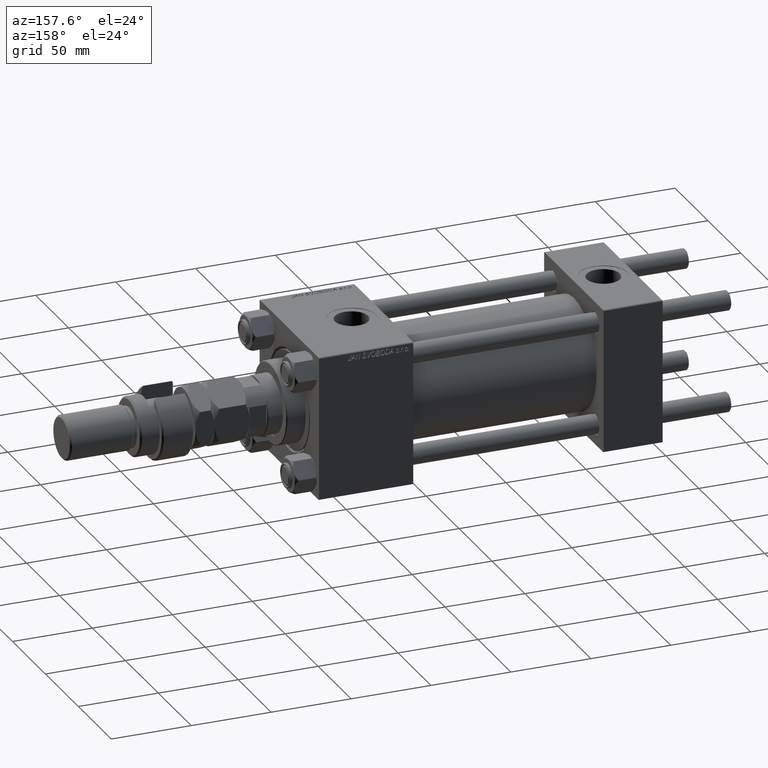
[diagram: clean part render]
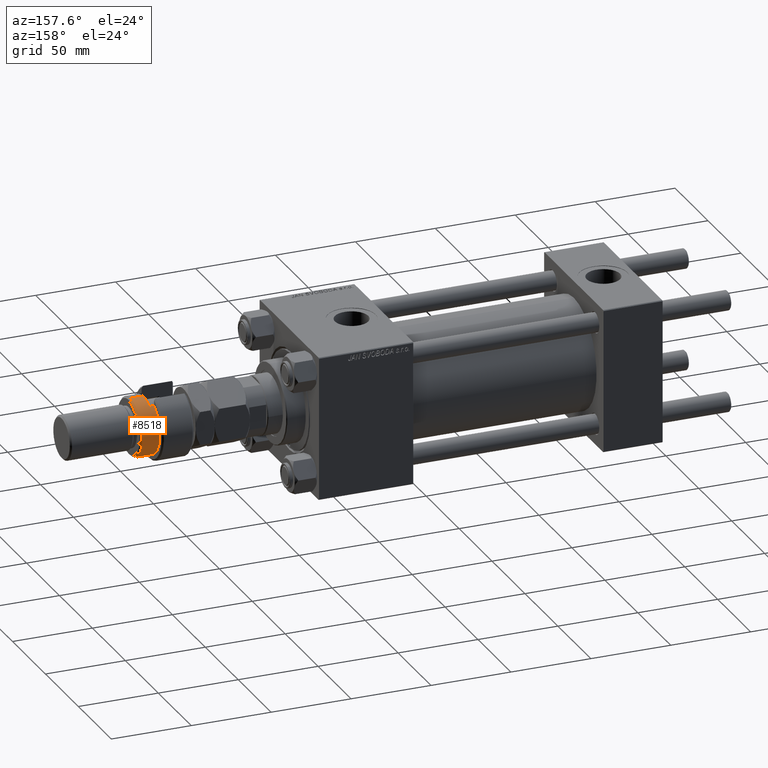
[diagram: same view with one face highlighted and labeled with its STEP entity id]
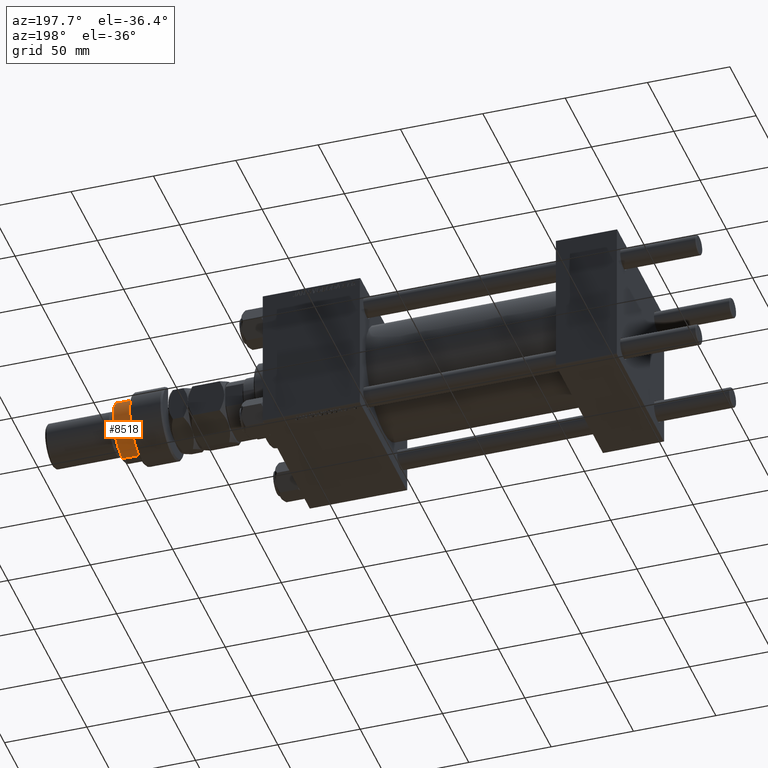
[diagram: same view with one face highlighted and labeled with its STEP entity id]
A machine part, auxiliary view. The second image highlights one B-rep face of the part: STEP entity #8518.
A second angle (auxiliary view) of the same face is appended — the face is thin or edge-on in the first view.
In plain terms, the highlighted cylindrical surface (edge-blend (fillet) strip) has radius 18 mm, axis along (-1, -0, 0).
Its self-contained STEP definition (entity closure, byte-faithful):
#921 = VERTEX_POINT ( 'NONE', #45051 ) ;
#4332 = AXIS2_PLACEMENT_3D ( 'NONE', #38580, #13744, #6519 ) ;
#4975 = VERTEX_POINT ( 'NONE', #40800 ) ;
#6519 = DIRECTION ( 'NONE',  ( 1.000000000000000000, 0.000000000000000000, 0.000000000000000000 ) ) ;
#6795 = VECTOR ( 'NONE', #43094, 1000.000000000000000 ) ;
#8084 = LINE ( 'NONE', #49524, #9862 ) ;
#8518 = ADVANCED_FACE ( 'NONE', ( #24577 ), #16835, .T. ) ;
#8609 = CIRCLE ( 'NONE', #4332, 18.00000000000000000 ) ;
#8778 = EDGE_CURVE ( 'NONE', #26270, #15880, #47172, .T. ) ;
#9112 = AXIS2_PLACEMENT_3D ( 'NONE', #25594, #17299, #42139 ) ;
#9862 = VECTOR ( 'NONE', #20109, 1000.000000000000000 ) ;
#9886 = ORIENTED_EDGE ( 'NONE', *, *, #51764, .T. ) ;
#10055 = CARTESIAN_POINT ( 'NONE',  ( 0.000000000000000000, 0.000000000000000000, 23.00000000000000000 ) ) ;
#10746 = CIRCLE ( 'NONE', #9112, 18.00000000000000000 ) ;
#10889 = CARTESIAN_POINT ( 'NONE',  ( 18.00000000000000000, 2.204364238465235428E-15, 20.00000000000000000 ) ) ;
#12320 = DIRECTION ( 'NONE',  ( -0.000000000000000000, -0.000000000000000000, -1.000000000000000000 ) ) ;
#13744 = DIRECTION ( 'NONE',  ( 0.000000000000000000, 0.000000000000000000, -1.000000000000000000 ) ) ;
#14606 = ORIENTED_EDGE ( 'NONE', *, *, #44046, .T. ) ;
#15880 = VERTEX_POINT ( 'NONE', #28814 ) ;
#16784 = ORIENTED_EDGE ( 'NONE', *, *, #8778, .F. ) ;
#16835 = CYLINDRICAL_SURFACE ( 'NONE', #21556, 18.00000000000000000 ) ;
#17163 = EDGE_CURVE ( 'NONE', #48465, #32164, #10746, .T. ) ;
#17299 = DIRECTION ( 'NONE',  ( 0.000000000000000000, 0.000000000000000000, 1.000000000000000000 ) ) ;
#19891 = ORIENTED_EDGE ( 'NONE', *, *, #50279, .T. ) ;
#20109 = DIRECTION ( 'NONE',  ( -0.000000000000000000, -0.000000000000000000, -1.000000000000000000 ) ) ;
#20561 = VECTOR ( 'NONE', #12320, 1000.000000000000000 ) ;
#21556 = AXIS2_PLACEMENT_3D ( 'NONE', #41936, #45166, #33143 ) ;
#24577 = FACE_OUTER_BOUND ( 'NONE', #35754, .T. ) ;
#25594 = CARTESIAN_POINT ( 'NONE',  ( 0.000000000000000000, 0.000000000000000000, 20.00000000000000000 ) ) ;
#26011 = ORIENTED_EDGE ( 'NONE', *, *, #17163, .T. ) ;
#26019 = CARTESIAN_POINT ( 'NONE',  ( -15.28888485142065434, 9.500000000000000000, 32.00000000000000000 ) ) ;
#26270 = VERTEX_POINT ( 'NONE', #41882 ) ;
#28814 = CARTESIAN_POINT ( 'NONE',  ( -15.28888485142065434, 9.500000000000000000, 23.00000000000000000 ) ) ;
#30959 = ORIENTED_EDGE ( 'NONE', *, *, #32058, .F. ) ;
#32058 = EDGE_CURVE ( 'NONE', #921, #26270, #8084, .T. ) ;
#32164 = VERTEX_POINT ( 'NONE', #42524 ) ;
#33143 = DIRECTION ( 'NONE',  ( -1.000000000000000000, 0.000000000000000000, 0.000000000000000000 ) ) ;
#35754 = EDGE_LOOP ( 'NONE', ( #19891, #9886, #26011, #14606, #16784, #30959 ) ) ;
#36892 = AXIS2_PLACEMENT_3D ( 'NONE', #10055, #42655, #38117 ) ;
#38117 = DIRECTION ( 'NONE',  ( -1.000000000000000000, 0.000000000000000000, 0.000000000000000000 ) ) ;
#38580 = CARTESIAN_POINT ( 'NONE',  ( 0.000000000000000000, 0.000000000000000000, 30.99999999999999645 ) ) ;
#40800 = CARTESIAN_POINT ( 'NONE',  ( 18.00000000000000000, 2.204364238465235428E-15, 30.99999999999999645 ) ) ;
#41882 = CARTESIAN_POINT ( 'NONE',  ( -18.00000000000000000, 0.000000000000000000, 23.00000000000000000 ) ) ;
#41936 = CARTESIAN_POINT ( 'NONE',  ( 0.000000000000000000, 0.000000000000000000, 32.00000000000000000 ) ) ;
#42139 = DIRECTION ( 'NONE',  ( 1.000000000000000000, 0.000000000000000000, 0.000000000000000000 ) ) ;
#42524 = CARTESIAN_POINT ( 'NONE',  ( -15.28888485142065434, 9.500000000000000000, 19.99999999999999645 ) ) ;
#42571 = LINE ( 'NONE', #26019, #6795 ) ;
#42655 = DIRECTION ( 'NONE',  ( 0.000000000000000000, 0.000000000000000000, -1.000000000000000000 ) ) ;
#43094 = DIRECTION ( 'NONE',  ( 0.000000000000000000, 0.000000000000000000, 1.000000000000000000 ) ) ;
#44046 = EDGE_CURVE ( 'NONE', #32164, #15880, #42571, .T. ) ;
#44674 = LINE ( 'NONE', #47961, #20561 ) ;
#45051 = CARTESIAN_POINT ( 'NONE',  ( -18.00000000000000000, 0.000000000000000000, 30.99999999999999645 ) ) ;
#45166 = DIRECTION ( 'NONE',  ( -0.000000000000000000, -0.000000000000000000, -1.000000000000000000 ) ) ;
#47172 = CIRCLE ( 'NONE', #36892, 18.00000000000000000 ) ;
#47961 = CARTESIAN_POINT ( 'NONE',  ( 18.00000000000000000, 2.204364238465235428E-15, 32.00000000000000000 ) ) ;
#48465 = VERTEX_POINT ( 'NONE', #10889 ) ;
#49524 = CARTESIAN_POINT ( 'NONE',  ( -18.00000000000000000, 0.000000000000000000, 32.00000000000000000 ) ) ;
#50279 = EDGE_CURVE ( 'NONE', #921, #4975, #8609, .T. ) ;
#51764 = EDGE_CURVE ( 'NONE', #4975, #48465, #44674, .T. ) ;